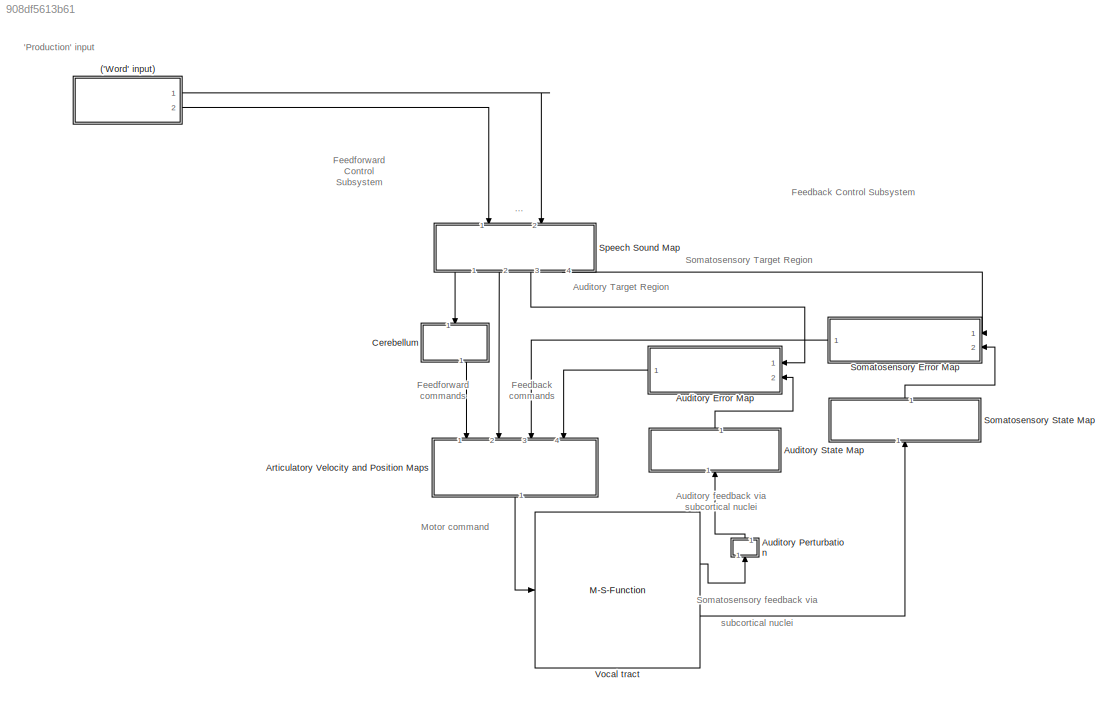
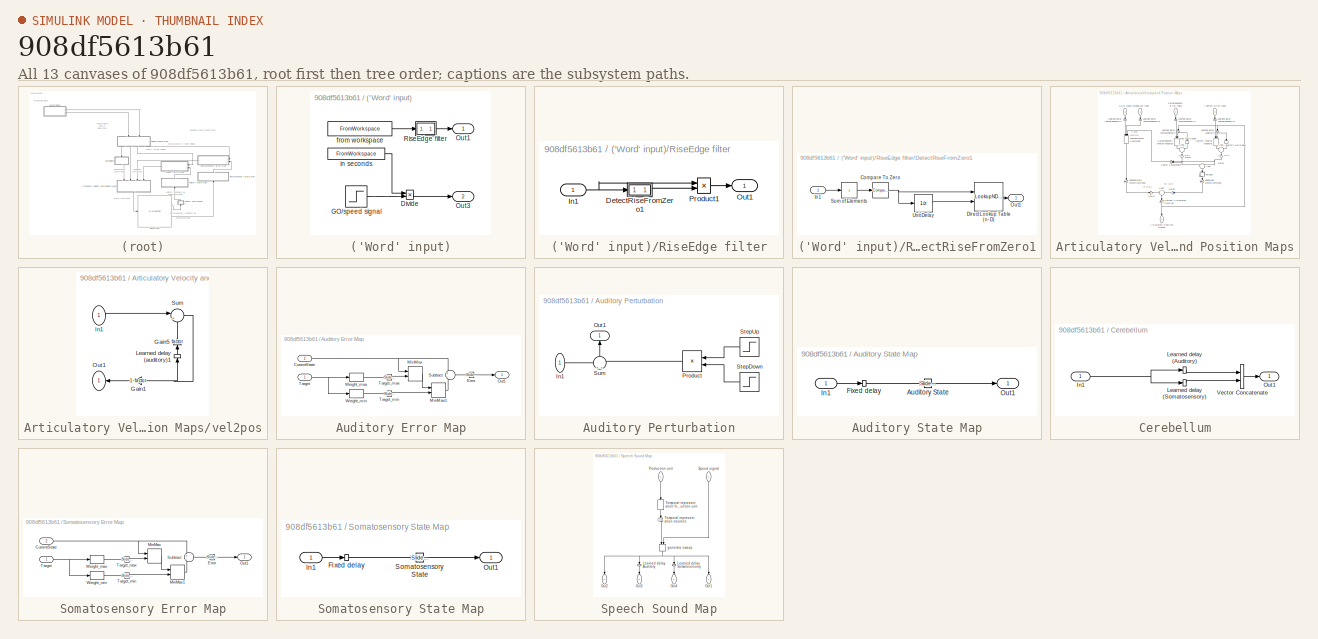
[diagram: thumbnail index - all 13 canvases of the model, root first then tree order]
MODEL slx_908df5613b61
KIND model
CONFIG AbsTol = auto
CONFIG EnableMultiTasking = on
CONFIG FixedStep = auto
CONFIG InitFcn = diva_callback_initfcn
CONFIG MaxStep = auto
CONFIG MinStep = auto
CONFIG RelTol = 1e-3
CONFIG SampleTimeConstraint = Unconstrained
CONFIG Solver = FixedStepDiscrete
CONFIG SolverName = FixedStepDiscrete
CONFIG StartTime = 0.0
CONFIG StopFcn = diva_callback_stopfcn
CONFIG StopTime = 1.16
BLOCK [SubSystem] ('Word' input)
  Ports = [0, 2]
  RequestExecContextInheritance = off
BLOCK [Product] ('Word' input)/Divide
  Inputs = /*
  Ports = [2, 1]
BLOCK [Step] ('Word' input)/GO//speed signal
  SampleTime = 0
  Time = 0
BLOCK [Outport] ('Word' input)/Out1
BLOCK [Outport] ('Word' input)/Out3
  Port = 2
BLOCK [SubSystem] ('Word' input)/RiseEdge filter
  Ports = [1, 1]
  RequestExecContextInheritance = off
BLOCK [SubSystem] ('Word' input)/RiseEdge filter/DetectRiseFromZero1
  Ports = [1, 1]
  RequestExecContextInheritance = off
BLOCK [Reference] ('Word' input)/RiseEdge filter/DetectRiseFromZero1/Compare To Zero  REF=simulink/Logic and Bit
Operations/Compare
To Zero
  Ports = [1, 1]
  SourceBlock = simulink/Logic and Bit\nOperations/Compare\nTo Zero
  SourceProductBaseCode = SL
  SourceType = Compare To Zero
BLOCK [LookupNDDirect] ('Word' input)/RiseEdge filter/DetectRiseFromZero1/Direct Lookup Table (n-D)
  Ports = [2, 1]
  Table = [0,1;0,0]
BLOCK [Inport] ('Word' input)/RiseEdge filter/DetectRiseFromZero1/In1
BLOCK [Outport] ('Word' input)/RiseEdge filter/DetectRiseFromZero1/Out1
BLOCK [Sum] ('Word' input)/RiseEdge filter/DetectRiseFromZero1/Sum of Elements
  IconShape = rectangular
  Inputs = +
  Ports = [1, 1]
BLOCK [UnitDelay] ('Word' input)/RiseEdge filter/DetectRiseFromZero1/Unit Delay
  HasFrameUpgradeWarning = on
  InitialCondition = 1
  SampleTime = -1
BLOCK [Inport] ('Word' input)/RiseEdge filter/In1
BLOCK [Outport] ('Word' input)/RiseEdge filter/Out1
BLOCK [Product] ('Word' input)/RiseEdge filter/Product1
  Ports = [2, 1]
  RndMeth = Zero
BLOCK [FromWorkspace] ('Word' input)/from workspace
  Interpolate = off
  OutputAfterFinalValue = Holding final value
  SampleTime = .005
  VariableName = Target_production
BLOCK [FromWorkspace] ('Word' input)/in seconds
  Interpolate = off
  OutputAfterFinalValue = Holding final value
  SampleTime = .005
  VariableName = Target_duration
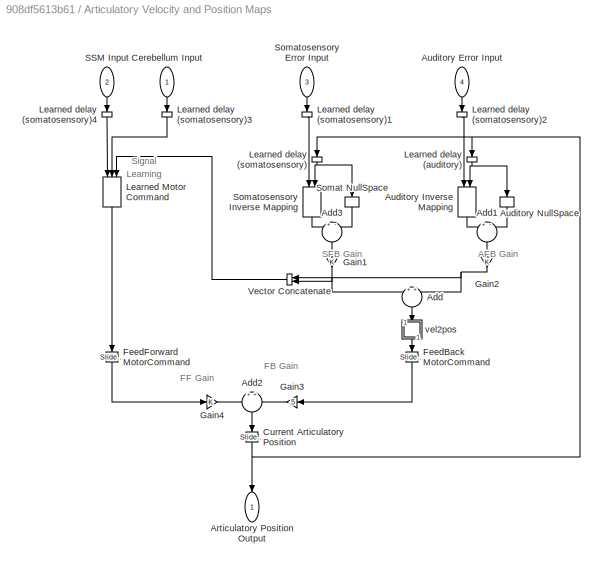
BLOCK [SubSystem] Articulatory Velocity and Position Maps
  Ports = [4, 1]
  RequestExecContextInheritance = off
BLOCK [Sum] Articulatory Velocity and Position Maps/Add
  Ports = [2, 1]
BLOCK [Sum] Articulatory Velocity and Position Maps/Add1
  Inputs = +-
  Ports = [2, 1]
BLOCK [Sum] Articulatory Velocity and Position Maps/Add2
  Ports = [2, 1]
BLOCK [Sum] Articulatory Velocity and Position Maps/Add3
  Inputs = +-
  Ports = [2, 1]
BLOCK [Outport] Articulatory Velocity and Position Maps/Articulatory Position Output
BLOCK [Inport] Articulatory Velocity and Position Maps/Auditory Error Input
  Port = 4
BLOCK [M-S-Function] Articulatory Velocity and Position Maps/Auditory Inverse Mapping
  FunctionName = diva_weightsexplicit
  Parameters = index,epsilon,lambda
  Ports = [2, 1]
BLOCK [M-S-Function] Articulatory Velocity and Position Maps/Auditory NullSpace
  FunctionName = diva_nullspacegain
  Parameters = k,index,epsilon,lambda
  Ports = [1, 1]
BLOCK [Inport] Articulatory Velocity and Position Maps/Cerebellum Input
BLOCK [Reference] Articulatory Velocity and Position Maps/Current Articulatory Position  REF=simulink/Math
Operations/Slider
Gain
  Ports = [1, 1]
  SourceBlock = simulink/Math\nOperations/Slider\nGain
  SourceProductBaseCode = SL
  SourceType = Slider Gain
BLOCK [Reference] Articulatory Velocity and Position Maps/FeedBack MotorCommand  REF=simulink/Math
Operations/Slider
Gain
  Ports = [1, 1]
  SourceBlock = simulink/Math\nOperations/Slider\nGain
  SourceProductBaseCode = SL
  SourceType = Slider Gain
BLOCK [Reference] Articulatory Velocity and Position Maps/FeedForward MotorCommand  REF=simulink/Math
Operations/Slider
Gain
  Ports = [1, 1]
  SourceBlock = simulink/Math\nOperations/Slider\nGain
  SourceProductBaseCode = SL
  SourceType = Slider Gain
BLOCK [Gain] Articulatory Velocity and Position Maps/Gain1
BLOCK [Gain] Articulatory Velocity and Position Maps/Gain2
BLOCK [Gain] Articulatory Velocity and Position Maps/Gain3
  Gain = .5
BLOCK [Gain] Articulatory Velocity and Position Maps/Gain4
BLOCK [M-S-Function] Articulatory Velocity and Position Maps/Learned Motor Command
  FunctionName = diva_weightsadaptive
  Parameters = filename,alpha
  Ports = [3, 1]
BLOCK [Delay] Articulatory Velocity and Position Maps/Learned delay (auditory)
  DelayLength = 11
  InitialCondition = 0
  InputPortMap = u0
  Ports = [1, 1]
BLOCK [Delay] Articulatory Velocity and Position Maps/Learned delay (somatosensory)
  DelayLength = 5
  InitialCondition = 0
  InputPortMap = u0
  Ports = [1, 1]
BLOCK [Delay] Articulatory Velocity and Position Maps/Learned delay (somatosensory)1
  DelayLength = 1
  InitialCondition = 0
  InputPortMap = u0
  Ports = [1, 1]
BLOCK [Delay] Articulatory Velocity and Position Maps/Learned delay (somatosensory)2
  DelayLength = 1
  InitialCondition = 0
  InputPortMap = u0
  Ports = [1, 1]
BLOCK [Delay] Articulatory Velocity and Position Maps/Learned delay (somatosensory)3
  DelayLength = 1
  InitialCondition = 0
  InputPortMap = u0
  Ports = [1, 1]
BLOCK [Delay] Articulatory Velocity and Position Maps/Learned delay (somatosensory)4
  DelayLength = 1
  InitialCondition = 0
  InputPortMap = u0
  Ports = [1, 1]
BLOCK [Inport] Articulatory Velocity and Position Maps/SSM Input
  Port = 2
BLOCK [M-S-Function] Articulatory Velocity and Position Maps/Somat NullSpace
  FunctionName = diva_nullspacegain
  Parameters = k,index,epsilon,lambda
  Ports = [1, 1]
BLOCK [Inport] Articulatory Velocity and Position Maps/Somatosensory Error Input
  Port = 3
BLOCK [M-S-Function] Articulatory Velocity and Position Maps/Somatosensory Inverse Mapping
  FunctionName = diva_weightsexplicit
  Parameters = index,epsilon,lambda
  Ports = [2, 1]
BLOCK [Concatenate] Articulatory Velocity and Position Maps/Vector Concatenate
  Ports = [2, 1]
BLOCK [SubSystem] Articulatory Velocity and Position Maps/vel2pos
  Ports = [1, 1]
  RequestExecContextInheritance = off
BLOCK [Gain] Articulatory Velocity and Position Maps/vel2pos/Gain1
  Gain = 1-factor
BLOCK [Gain] Articulatory Velocity and Position Maps/vel2pos/Gain5
  Gain = factor
BLOCK [Inport] Articulatory Velocity and Position Maps/vel2pos/In1
BLOCK [Delay] Articulatory Velocity and Position Maps/vel2pos/Learned delay (auditory)1
  DelayLength = 1
  InitialCondition = 0
  InputPortMap = u0
  Ports = [1, 1]
BLOCK [Outport] Articulatory Velocity and Position Maps/vel2pos/Out1
BLOCK [Sum] Articulatory Velocity and Position Maps/vel2pos/Sum
  Inputs = |++
  Ports = [2, 1]
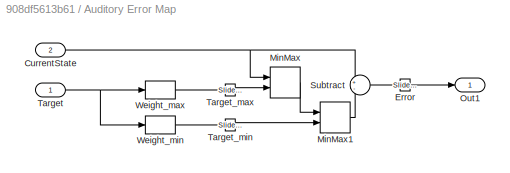
BLOCK [SubSystem] Auditory Error Map
  Ports = [2, 1]
  RequestExecContextInheritance = off
BLOCK [Inport] Auditory Error Map/CurrentState
  Port = 2
BLOCK [Reference] Auditory Error Map/Error  REF=simulink/Math
Operations/Slider
Gain
  Ports = [1, 1]
  SourceBlock = simulink/Math\nOperations/Slider\nGain
  SourceProductBaseCode = SL
  SourceType = Slider Gain
BLOCK [MinMax] Auditory Error Map/MinMax
  Inputs = 2
  Ports = [2, 1]
  ZeroCross = off
BLOCK [MinMax] Auditory Error Map/MinMax1
  Function = max
  Inputs = 2
  Ports = [2, 1]
  ZeroCross = off
BLOCK [Outport] Auditory Error Map/Out1
BLOCK [Sum] Auditory Error Map/Subtract
  Inputs = +-
  Ports = [2, 1]
BLOCK [Inport] Auditory Error Map/Target
BLOCK [Reference] Auditory Error Map/Target_max  REF=simulink/Math
Operations/Slider
Gain
  Ports = [1, 1]
  SourceBlock = simulink/Math\nOperations/Slider\nGain
  SourceProductBaseCode = SL
  SourceType = Slider Gain
BLOCK [Reference] Auditory Error Map/Target_min  REF=simulink/Math
Operations/Slider
Gain
  Ports = [1, 1]
  SourceBlock = simulink/Math\nOperations/Slider\nGain
  SourceProductBaseCode = SL
  SourceType = Slider Gain
BLOCK [M-S-Function] Auditory Error Map/Weight_max
  FunctionName = diva_weights
  Parameters = filename
  Ports = [1, 1]
BLOCK [M-S-Function] Auditory Error Map/Weight_min
  FunctionName = diva_weights
  Parameters = filename
  Ports = [1, 1]
BLOCK [SubSystem] Auditory Perturbation
  Ports = [1, 1]
  RequestExecContextInheritance = off
BLOCK [Inport] Auditory Perturbation/In1
BLOCK [Outport] Auditory Perturbation/Out1
BLOCK [Product] Auditory Perturbation/Product
  Ports = [2, 1]
BLOCK [Step] Auditory Perturbation/StepDown
  After = 0
  Before = 1
  SampleTime = 0
  Time = perturbationtime/1000+perturbationduration/1000
BLOCK [Step] Auditory Perturbation/StepUp
  After = perturbationsize./[100,500,1500,3000]
  SampleTime = 0
  Time = perturbationtime/1000
BLOCK [Sum] Auditory Perturbation/Sum
  Ports = [2, 1]
BLOCK [SubSystem] Auditory State Map
  Ports = [1, 1]
  RequestExecContextInheritance = off
BLOCK [Reference] Auditory State Map/Auditory State  REF=simulink/Math
Operations/Slider
Gain
  Ports = [1, 1]
  SourceBlock = simulink/Math\nOperations/Slider\nGain
  SourceProductBaseCode = SL
  SourceType = Slider Gain
BLOCK [Delay] Auditory State Map/Fixed delay
  DelayLength = 10
  InputPortMap = u0
  Ports = [1, 1]
BLOCK [Inport] Auditory State Map/In1
BLOCK [Outport] Auditory State Map/Out1
BLOCK [SubSystem] Cerebellum
  Ports = [1, 1]
  RequestExecContextInheritance = off
BLOCK [Inport] Cerebellum/In1
BLOCK [DiscreteFir] Cerebellum/Learned delay (Auditory)
  AccumDataTypeStr = Inherit: Same as product output
  Coefficients = diva_hanning(11,.5,.95)
  InputPortMap = u0
  OutputPortMap = o0
  Ports = [1, 1]
BLOCK [DiscreteFir] Cerebellum/Learned delay (Somatosensory)
  AccumDataTypeStr = Inherit: Same as product output
  Coefficients = diva_hanning(5,.5,.95)
  InputPortMap = u0
  OutputPortMap = o0
  Ports = [1, 1]
BLOCK [Outport] Cerebellum/Out1
BLOCK [Concatenate] Cerebellum/Vector Concatenate
  Ports = [2, 1]
BLOCK [SubSystem] Somatosensory Error Map
  Ports = [2, 1]
  RequestExecContextInheritance = off
BLOCK [Inport] Somatosensory Error Map/CurrentState
  Port = 2
BLOCK [Reference] Somatosensory Error Map/Error  REF=simulink/Math
Operations/Slider
Gain
  Ports = [1, 1]
  SourceBlock = simulink/Math\nOperations/Slider\nGain
  SourceProductBaseCode = SL
  SourceType = Slider Gain
BLOCK [MinMax] Somatosensory Error Map/MinMax
  Inputs = 2
  Ports = [2, 1]
  ZeroCross = off
BLOCK [MinMax] Somatosensory Error Map/MinMax1
  Function = max
  Inputs = 2
  Ports = [2, 1]
  ZeroCross = off
BLOCK [Outport] Somatosensory Error Map/Out1
BLOCK [Sum] Somatosensory Error Map/Subtract
  Inputs = +-
  Ports = [2, 1]
BLOCK [Inport] Somatosensory Error Map/Target
BLOCK [Reference] Somatosensory Error Map/Target_max  REF=simulink/Math
Operations/Slider
Gain
  Ports = [1, 1]
  SourceBlock = simulink/Math\nOperations/Slider\nGain
  SourceProductBaseCode = SL
  SourceType = Slider Gain
BLOCK [Reference] Somatosensory Error Map/Target_min  REF=simulink/Math
Operations/Slider
Gain
  Ports = [1, 1]
  SourceBlock = simulink/Math\nOperations/Slider\nGain
  SourceProductBaseCode = SL
  SourceType = Slider Gain
BLOCK [M-S-Function] Somatosensory Error Map/Weight_max
  FunctionName = diva_weights
  Parameters = filename
  Ports = [1, 1]
BLOCK [M-S-Function] Somatosensory Error Map/Weight_min
  FunctionName = diva_weights
  Parameters = filename
  Ports = [1, 1]
BLOCK [SubSystem] Somatosensory State Map
  Ports = [1, 1]
  RequestExecContextInheritance = off
BLOCK [Delay] Somatosensory State Map/Fixed delay
  DelayLength = 4
  InputPortMap = u0
  Ports = [1, 1]
BLOCK [Inport] Somatosensory State Map/In1
BLOCK [Outport] Somatosensory State Map/Out1
BLOCK [Reference] Somatosensory State Map/Somatosensory State  REF=simulink/Math
Operations/Slider
Gain
  Ports = [1, 1]
  SourceBlock = simulink/Math\nOperations/Slider\nGain
  SourceProductBaseCode = SL
  SourceType = Slider Gain
BLOCK [SubSystem] Speech Sound Map
  Ports = [2, 4]
  RequestExecContextInheritance = off
BLOCK [Delay] Speech Sound Map/Learned delay Auditory
  DelayLength = 11
  InputPortMap = u0
  Ports = [1, 1]
BLOCK [Delay] Speech Sound Map/Learned delay Somatosensory
  DelayLength = 5
  InputPortMap = u0
  Ports = [1, 1]
BLOCK [Outport] Speech Sound Map/Out1
BLOCK [Outport] Speech Sound Map/Out2
  Port = 2
BLOCK [Outport] Speech Sound Map/Out3
  Port = 3
BLOCK [Outport] Speech Sound Map/Out4
  Port = 4
BLOCK [Inport] Speech Sound Map/Production unit
  Port = 2
BLOCK [Inport] Speech Sound Map/Speed signal
BLOCK [M-S-Function] Speech Sound Map/Temporal representation for each production unit
  FunctionName = diva_weights
  Parameters = filename
  Ports = [1, 1]
BLOCK [Reference] Speech Sound Map/Temporal representation neurons  REF=simulink/Math
Operations/Slider
Gain
  Ports = [1, 1]
  SourceBlock = simulink/Math\nOperations/Slider\nGain
  SourceProductBaseCode = SL
  SourceType = Slider Gain
BLOCK [M-S-Function] Speech Sound Map/generate sweep
  FunctionName = diva_sequencer
  Ports = [2, 1]
BLOCK [M-S-Function] Vocal tract
  FunctionName = diva_vocaltract
  Ports = [1, 2]
ANNOTATION (root): 'Production' input
ANNOTATION (root): Auditory Target Region
ANNOTATION (root): Auditory feedback via subcortical nuclei
ANNOTATION (root): Feedback commands
ANNOTATION (root): Feedback Control Subsystem
ANNOTATION (root): Feedforward commands
ANNOTATION (root): Feedforward Control Subsystem
ANNOTATION (root): Motor command
ANNOTATION (root): Somatosensory Target Region
ANNOTATION (root): Somatosensory feedback via subcortical nuclei
ANNOTATION Articulatory Velocity and Position Maps: AFB Gain
ANNOTATION Articulatory Velocity and Position Maps: FB Gain
ANNOTATION Articulatory Velocity and Position Maps: FF Gain
ANNOTATION Articulatory Velocity and Position Maps: SFB Gain
ANNOTATION Articulatory Velocity and Position Maps: Learning Signal
LINE ('Word' input)/Divide:1 -> ('Word' input)/Out3:1
LINE ('Word' input)/GO//speed signal:1 -> ('Word' input)/Divide:2
NET ('Word' input)/RiseEdge filter/DetectRiseFromZero1/Compare To Zero:1 -> ('Word' input)/RiseEdge filter/DetectRiseFromZero1/Direct Lookup Table (n-D):1, ('Word' input)/RiseEdge filter/DetectRiseFromZero1/Unit Delay:1
LINE ('Word' input)/RiseEdge filter/DetectRiseFromZero1/Direct Lookup Table (n-D):1 -> ('Word' input)/RiseEdge filter/DetectRiseFromZero1/Out1:1
LINE ('Word' input)/RiseEdge filter/DetectRiseFromZero1/In1:1 -> ('Word' input)/RiseEdge filter/DetectRiseFromZero1/Sum of Elements:1
LINE ('Word' input)/RiseEdge filter/DetectRiseFromZero1/Sum of Elements:1 -> ('Word' input)/RiseEdge filter/DetectRiseFromZero1/Compare To Zero:1
LINE ('Word' input)/RiseEdge filter/DetectRiseFromZero1/Unit Delay:1 -> ('Word' input)/RiseEdge filter/DetectRiseFromZero1/Direct Lookup Table (n-D):2
LINE ('Word' input)/RiseEdge filter/DetectRiseFromZero1:1 -> ('Word' input)/RiseEdge filter/Product1:2
NET ('Word' input)/RiseEdge filter/In1:1 -> ('Word' input)/RiseEdge filter/DetectRiseFromZero1:1, ('Word' input)/RiseEdge filter/Product1:1
LINE ('Word' input)/RiseEdge filter/Product1:1 -> ('Word' input)/RiseEdge filter/Out1:1
LINE ('Word' input)/RiseEdge filter:1 -> ('Word' input)/Out1:1
LINE ('Word' input)/from workspace:1 -> ('Word' input)/RiseEdge filter:1
LINE ('Word' input)/in seconds:1 -> ('Word' input)/Divide:1
LINE ('Word' input):1 -> Speech Sound Map:2
LINE ('Word' input):2 -> Speech Sound Map:1
LINE Articulatory Velocity and Position Maps/Add1:1 -> Articulatory Velocity and Position Maps/Gain2:1
LINE Articulatory Velocity and Position Maps/Add2:1 -> Articulatory Velocity and Position Maps/Current Articulatory Position:1
LINE Articulatory Velocity and Position Maps/Add3:1 -> Articulatory Velocity and Position Maps/Gain1:1
LINE Articulatory Velocity and Position Maps/Add:1 -> Articulatory Velocity and Position Maps/vel2pos:1
LINE Articulatory Velocity and Position Maps/Auditory Error Input:1 -> Articulatory Velocity and Position Maps/Learned delay (somatosensory)2:1
LINE Articulatory Velocity and Position Maps/Auditory Inverse Mapping:1 -> Articulatory Velocity and Position Maps/Add1:1
LINE Articulatory Velocity and Position Maps/Auditory NullSpace:1 -> Articulatory Velocity and Position Maps/Add1:2
LINE Articulatory Velocity and Position Maps/Cerebellum Input:1 -> Articulatory Velocity and Position Maps/Learned delay (somatosensory)3:1
NET Articulatory Velocity and Position Maps/Current Articulatory Position:1 -> Articulatory Velocity and Position Maps/Articulatory Position Output:1, Articulatory Velocity and Position Maps/Learned delay (auditory):1, Articulatory Velocity and Position Maps/Learned delay (somatosensory):1
LINE Articulatory Velocity and Position Maps/FeedBack MotorCommand:1 -> Articulatory Velocity and Position Maps/Gain3:1
LINE Articulatory Velocity and Position Maps/FeedForward MotorCommand:1 -> Articulatory Velocity and Position Maps/Gain4:1
NET Articulatory Velocity and Position Maps/Gain1:1 -> Articulatory Velocity and Position Maps/Add:1, Articulatory Velocity and Position Maps/Vector Concatenate:2
NET Articulatory Velocity and Position Maps/Gain2:1 -> Articulatory Velocity and Position Maps/Add:2, Articulatory Velocity and Position Maps/Vector Concatenate:1
LINE Articulatory Velocity and Position Maps/Gain3:1 -> Articulatory Velocity and Position Maps/Add2:2
LINE Articulatory Velocity and Position Maps/Gain4:1 -> Articulatory Velocity and Position Maps/Add2:1
LINE Articulatory Velocity and Position Maps/Learned Motor Command:1 -> Articulatory Velocity and Position Maps/FeedForward MotorCommand:1
NET Articulatory Velocity and Position Maps/Learned delay (auditory):1 -> Articulatory Velocity and Position Maps/Auditory Inverse Mapping:2, Articulatory Velocity and Position Maps/Auditory NullSpace:1
LINE Articulatory Velocity and Position Maps/Learned delay (somatosensory)1:1 -> Articulatory Velocity and Position Maps/Somatosensory Inverse Mapping:1
LINE Articulatory Velocity and Position Maps/Learned delay (somatosensory)2:1 -> Articulatory Velocity and Position Maps/Auditory Inverse Mapping:1
LINE Articulatory Velocity and Position Maps/Learned delay (somatosensory)3:1 -> Articulatory Velocity and Position Maps/Learned Motor Command:2
LINE Articulatory Velocity and Position Maps/Learned delay (somatosensory)4:1 -> Articulatory Velocity and Position Maps/Learned Motor Command:1
NET Articulatory Velocity and Position Maps/Learned delay (somatosensory):1 -> Articulatory Velocity and Position Maps/Somat NullSpace:1, Articulatory Velocity and Position Maps/Somatosensory Inverse Mapping:2
LINE Articulatory Velocity and Position Maps/SSM Input:1 -> Articulatory Velocity and Position Maps/Learned delay (somatosensory)4:1
LINE Articulatory Velocity and Position Maps/Somat NullSpace:1 -> Articulatory Velocity and Position Maps/Add3:2
LINE Articulatory Velocity and Position Maps/Somatosensory Error Input:1 -> Articulatory Velocity and Position Maps/Learned delay (somatosensory)1:1
LINE Articulatory Velocity and Position Maps/Somatosensory Inverse Mapping:1 -> Articulatory Velocity and Position Maps/Add3:1
LINE Articulatory Velocity and Position Maps/Vector Concatenate:1 -> Articulatory Velocity and Position Maps/Learned Motor Command:3
LINE Articulatory Velocity and Position Maps/vel2pos/Gain1:1 -> Articulatory Velocity and Position Maps/vel2pos/Out1:1
LINE Articulatory Velocity and Position Maps/vel2pos/Gain5:1 -> Articulatory Velocity and Position Maps/vel2pos/Sum:2
LINE Articulatory Velocity and Position Maps/vel2pos/In1:1 -> Articulatory Velocity and Position Maps/vel2pos/Sum:1
LINE Articulatory Velocity and Position Maps/vel2pos/Learned delay (auditory)1:1 -> Articulatory Velocity and Position Maps/vel2pos/Gain5:1
NET Articulatory Velocity and Position Maps/vel2pos/Sum:1 -> Articulatory Velocity and Position Maps/vel2pos/Gain1:1, Articulatory Velocity and Position Maps/vel2pos/Learned delay (auditory)1:1
LINE Articulatory Velocity and Position Maps/vel2pos:1 -> Articulatory Velocity and Position Maps/FeedBack MotorCommand:1
LINE Articulatory Velocity and Position Maps:1 -> Vocal tract:1
NET Auditory Error Map/CurrentState:1 -> Auditory Error Map/MinMax:1, Auditory Error Map/Subtract:1
LINE Auditory Error Map/Error:1 -> Auditory Error Map/Out1:1
LINE Auditory Error Map/MinMax1:1 -> Auditory Error Map/Subtract:2
LINE Auditory Error Map/MinMax:1 -> Auditory Error Map/MinMax1:1
LINE Auditory Error Map/Subtract:1 -> Auditory Error Map/Error:1
NET Auditory Error Map/Target:1 -> Auditory Error Map/Weight_max:1, Auditory Error Map/Weight_min:1
LINE Auditory Error Map/Target_max:1 -> Auditory Error Map/MinMax:2
LINE Auditory Error Map/Target_min:1 -> Auditory Error Map/MinMax1:2
LINE Auditory Error Map/Weight_max:1 -> Auditory Error Map/Target_max:1
LINE Auditory Error Map/Weight_min:1 -> Auditory Error Map/Target_min:1
LINE Auditory Error Map:1 -> Articulatory Velocity and Position Maps:4
LINE Auditory Perturbation/In1:1 -> Auditory Perturbation/Sum:1
LINE Auditory Perturbation/Product:1 -> Auditory Perturbation/Sum:2
LINE Auditory Perturbation/StepDown:1 -> Auditory Perturbation/Product:2
LINE Auditory Perturbation/StepUp:1 -> Auditory Perturbation/Product:1
LINE Auditory Perturbation/Sum:1 -> Auditory Perturbation/Out1:1
LINE Auditory Perturbation:1 -> Auditory State Map:1
LINE Auditory State Map/Auditory State:1 -> Auditory State Map/Out1:1
LINE Auditory State Map/Fixed delay:1 -> Auditory State Map/Auditory State:1
LINE Auditory State Map/In1:1 -> Auditory State Map/Fixed delay:1
LINE Auditory State Map:1 -> Auditory Error Map:2
NET Cerebellum/In1:1 -> Cerebellum/Learned delay (Auditory):1, Cerebellum/Learned delay (Somatosensory):1
LINE Cerebellum/Learned delay (Auditory):1 -> Cerebellum/Vector Concatenate:1
LINE Cerebellum/Learned delay (Somatosensory):1 -> Cerebellum/Vector Concatenate:2
LINE Cerebellum/Vector Concatenate:1 -> Cerebellum/Out1:1
LINE Cerebellum:1 -> Articulatory Velocity and Position Maps:1
NET Somatosensory Error Map/CurrentState:1 -> Somatosensory Error Map/MinMax:1, Somatosensory Error Map/Subtract:1
LINE Somatosensory Error Map/Error:1 -> Somatosensory Error Map/Out1:1
LINE Somatosensory Error Map/MinMax1:1 -> Somatosensory Error Map/Subtract:2
LINE Somatosensory Error Map/MinMax:1 -> Somatosensory Error Map/MinMax1:1
LINE Somatosensory Error Map/Subtract:1 -> Somatosensory Error Map/Error:1
NET Somatosensory Error Map/Target:1 -> Somatosensory Error Map/Weight_max:1, Somatosensory Error Map/Weight_min:1
LINE Somatosensory Error Map/Target_max:1 -> Somatosensory Error Map/MinMax:2
LINE Somatosensory Error Map/Target_min:1 -> Somatosensory Error Map/MinMax1:2
LINE Somatosensory Error Map/Weight_max:1 -> Somatosensory Error Map/Target_max:1
LINE Somatosensory Error Map/Weight_min:1 -> Somatosensory Error Map/Target_min:1
LINE Somatosensory Error Map:1 -> Articulatory Velocity and Position Maps:3
LINE Somatosensory State Map/Fixed delay:1 -> Somatosensory State Map/Somatosensory State:1
LINE Somatosensory State Map/In1:1 -> Somatosensory State Map/Fixed delay:1
LINE Somatosensory State Map/Somatosensory State:1 -> Somatosensory State Map/Out1:1
LINE Somatosensory State Map:1 -> Somatosensory Error Map:2
LINE Speech Sound Map/Learned delay Auditory:1 -> Speech Sound Map/Out3:1
LINE Speech Sound Map/Learned delay Somatosensory:1 -> Speech Sound Map/Out4:1
LINE Speech Sound Map/Production unit:1 -> Speech Sound Map/Temporal representation for each production unit:1
LINE Speech Sound Map/Speed signal:1 -> Speech Sound Map/generate sweep:2
LINE Speech Sound Map/Temporal representation for each production unit:1 -> Speech Sound Map/Temporal representation neurons:1
LINE Speech Sound Map/Temporal representation neurons:1 -> Speech Sound Map/generate sweep:1
NET Speech Sound Map/generate sweep:1 -> Speech Sound Map/Learned delay Auditory:1, Speech Sound Map/Learned delay Somatosensory:1, Speech Sound Map/Out1:1, Speech Sound Map/Out2:1
LINE Speech Sound Map:1 -> Cerebellum:1
LINE Speech Sound Map:2 -> Articulatory Velocity and Position Maps:2
LINE Speech Sound Map:3 -> Auditory Error Map:1
LINE Speech Sound Map:4 -> Somatosensory Error Map:1
LINE Vocal tract:1 -> Auditory Perturbation:1
LINE Vocal tract:2 -> Somatosensory State Map:1
note: NET lines group one-source signal fan-out (src -> all destinations, sorted); 1:1 wires keep LINE
